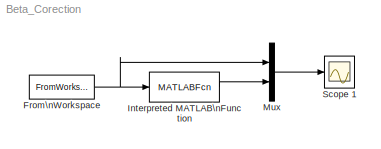
MODEL Beta_Corection
KIND model
BLOCK [FromWorkspace] From\nWorkspace
  SID = 1
  SampleTime = 0
  VariableName = Beta
  ZeroCross = on
BLOCK [MATLABFcn] Interpreted MATLAB\nFunction
  MATLABFcn = Beta_Correction(u)
  Ports = [1, 1]
  SID = 6
BLOCK [Mux] Mux
  DisplayOption = bar
  Inputs = 2
  Ports = [2, 1]
  SID = 4
BLOCK [Scope] Scope 1
  DataFormat = StructureWithTime
  Floating = off
  LimitDataPoints = off
  NumInputPorts = 1
  Ports = [1]
  SID = 3
  SampleTime = 0
  ShowLegends = off
  YMax = 13
  YMin = -4
  ZoomMode = xonly
NET From\nWorkspace:1 -> Interpreted MATLAB\nFunction:1, Mux:1
LINE Interpreted MATLAB\nFunction:1 -> Mux:2
LINE Mux:1 -> Scope 1:1
note: NET lines group one-source signal fan-out (src -> all destinations, sorted); 1:1 wires keep LINE
